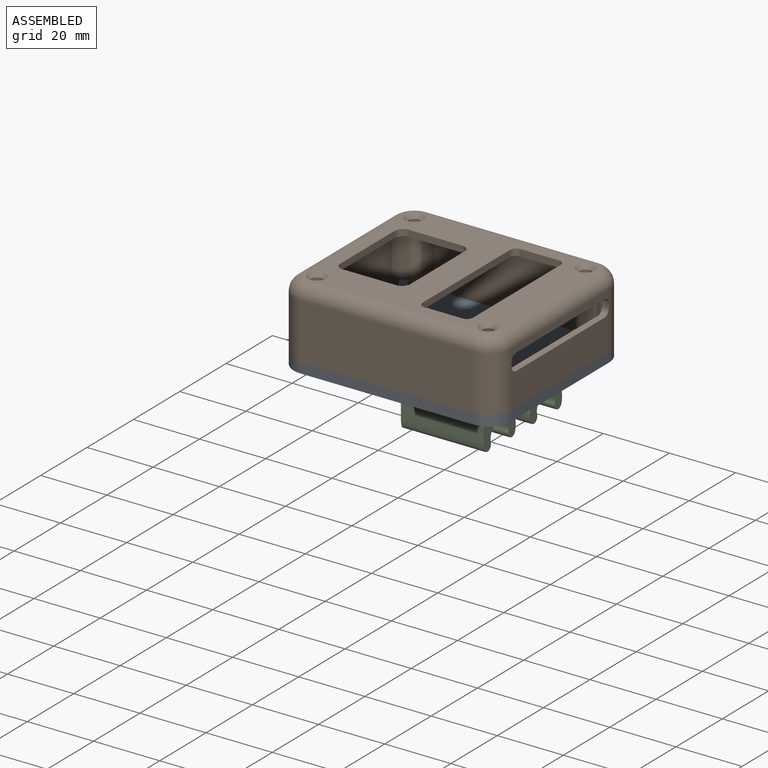
[diagram: assembled view]
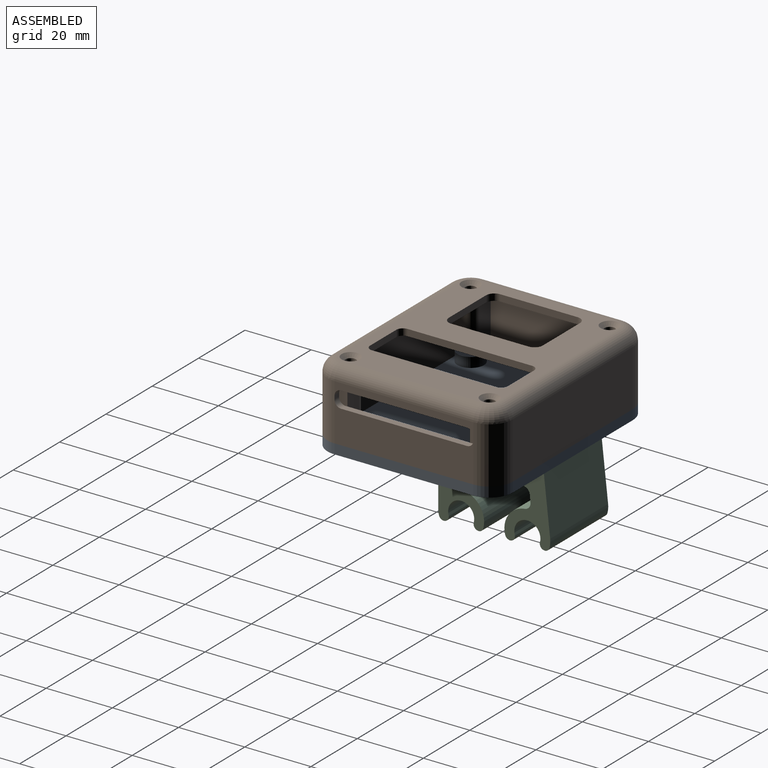
[diagram: assembled view, second angle]
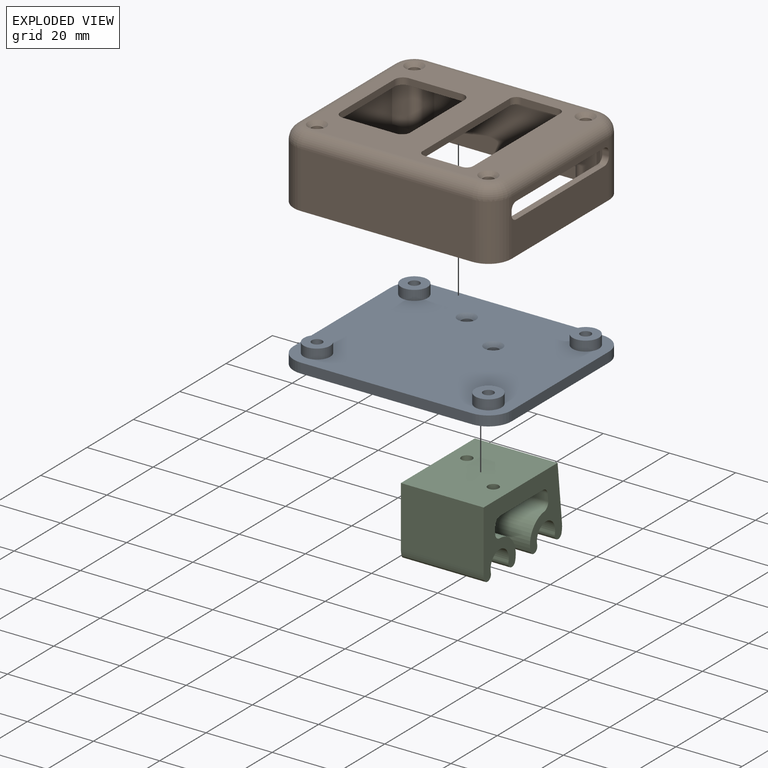
[diagram: exploded view]
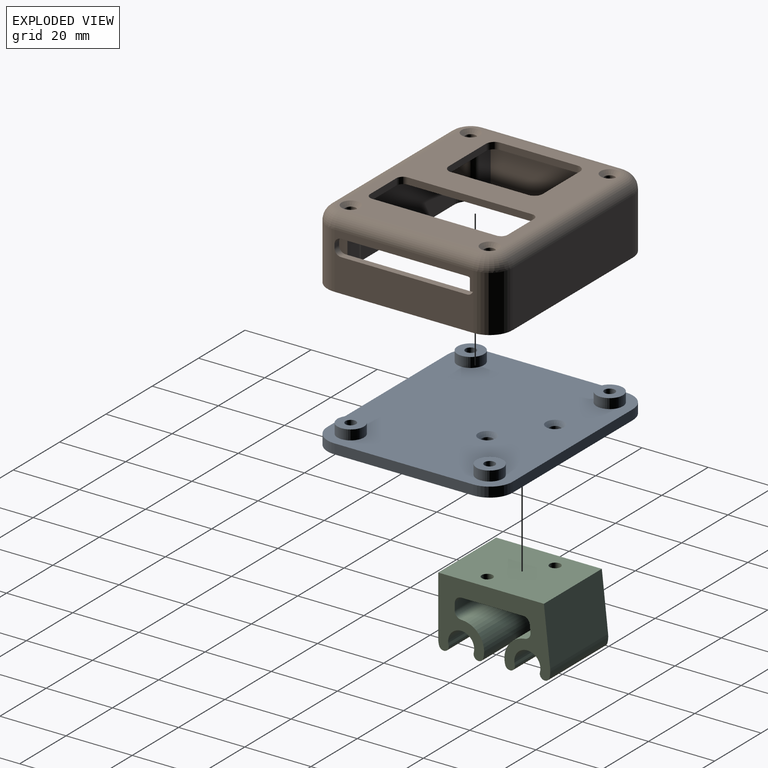
[diagram: exploded view, second angle]
ASSEMBLY  parts=3 mates=4
PART A: 54 faces, bbox 65.8x56x6 mm
  f0: plane 65.8x56mm, normal (0,0,-1), area 3518mm2, adj f1,f2,f3,f4,f5,f6,f7,f8
  f1: plane 51.8x3mm, normal (0,1,0), area 155.4mm2, adj f0,f2,f8,f9
  f2: cylinder r=7mm len=7mm, axis (0,0,1), area 33mm2, adj f0,f1,f3,f9
  f3: plane 42x3mm, normal (-1,0,0), area 126mm2, adj f0,f2,f4,f9
  f4: cylinder r=7mm len=7mm, axis (0,0,1), area 33mm2, adj f0,f3,f5,f9
  f5: plane 51.8x3mm, normal (0,-1,0), area 155.4mm2, adj f0,f4,f6,f9
  f6: cylinder r=7mm len=7mm, axis (0,0,1), area 33mm2, adj f0,f5,f7,f9
  f7: plane 42x3mm, normal (1,0,0), area 126mm2, adj f0,f6,f8,f9
  f8: cylinder r=7mm len=7mm, axis (0,0,1), area 33mm2, adj f0,f1,f7,f9
  f9: plane 65.8x56mm, normal (0,0,1), area 3394.2mm2, adj f1,f2,f3,f4,f5,f6,f7,f8
  f10: cylinder r=4mm len=8mm, axis (0,0,-1), area 75.4mm2, adj f9,f11
  f11: plane 8x8mm, normal (0,0,1), area 42.2mm2, adj f10,f46
  f12: cylinder r=4mm len=8mm, axis (0,0,-1), area 75.4mm2, adj f9,f13
  f13: plane 8x8mm, normal (0,0,1), area 42.2mm2, adj f12,f49
  f14: cylinder r=4mm len=8mm, axis (0,0,-1), area 75.4mm2, adj f9,f15
  f15: plane 8x8mm, normal (0,0,1), area 42.2mm2, adj f14,f48
  f16: cylinder r=4mm len=8mm, axis (0,0,-1), area 75.4mm2, adj f9,f17
  f17: plane 8x8mm, normal (0,0,1), area 42.2mm2, adj f16,f47
  f18: plane 3.23x3mm, normal (0,1,0), area 9.7mm2, adj f0,f19,f23,f24
  f19: plane 3x2.8mm, normal (0.87,0.5,0), area 9.7mm2, adj f0,f18,f20,f24
  f20: plane 3x2.8mm, normal (0.87,-0.5,0), area 9.7mm2, adj f0,f19,f21,f24
  f21: plane 3.23x3mm, normal (0,-1,0), area 9.7mm2, adj f0,f20,f22,f24
  f22: plane 3x2.8mm, normal (-0.87,-0.5,0), area 9.7mm2, adj f0,f21,f23,f24
  f23: plane 3x2.8mm, normal (-0.87,0.5,0), area 9.7mm2, adj f0,f18,f22,f24
  f24: plane 6.47x5.6mm, normal (0,0,-1), area 19.1mm2, adj f18,f19,f20,f21,f22,f23,f49
  f25: plane 3.23x3mm, normal (0,-1,0), area 9.7mm2, adj f0,f26,f30,f31
  f26: plane 3x2.8mm, normal (-0.87,-0.5,0), area 9.7mm2, adj f0,f25,f27,f31
  f27: plane 3x2.8mm, normal (-0.87,0.5,0), area 9.7mm2, adj f0,f26,f28,f31
  f28: plane 3.23x3mm, normal (0,1,0), area 9.7mm2, adj f0,f27,f29,f31
  f29: plane 3x2.8mm, normal (0.87,0.5,0), area 9.7mm2, adj f0,f28,f30,f31
  f30: plane 3x2.8mm, normal (0.87,-0.5,0), area 9.7mm2, adj f0,f25,f29,f31
  f31: plane 6.47x5.6mm, normal (0,0,-1), area 19.1mm2, adj f25,f26,f27,f28,f29,f30,f48
  f32: plane 3.23x3mm, normal (0,1,0), area 9.7mm2, adj f0,f33,f37,f38
  f33: plane 3x2.8mm, normal (0.87,0.5,0), area 9.7mm2, adj f0,f32,f34,f38
  f34: plane 3x2.8mm, normal (0.87,-0.5,0), area 9.7mm2, adj f0,f33,f35,f38
  f35: plane 3.23x3mm, normal (0,-1,0), area 9.7mm2, adj f0,f34,f36,f38
  f36: plane 3x2.8mm, normal (-0.87,-0.5,0), area 9.7mm2, adj f0,f35,f37,f38
  f37: plane 3x2.8mm, normal (-0.87,0.5,0), area 9.7mm2, adj f0,f32,f36,f38
  f38: plane 6.47x5.6mm, normal (0,0,-1), area 19.1mm2, adj f32,f33,f34,f35,f36,f37,f47
  f39: plane 3.23x3mm, normal (0,1,0), area 9.7mm2, adj f0,f40,f44,f45
  f40: plane 3x2.8mm, normal (0.87,0.5,0), area 9.7mm2, adj f0,f39,f41,f45
  f41: plane 3x2.8mm, normal (0.87,-0.5,0), area 9.7mm2, adj f0,f40,f42,f45
  f42: plane 3.23x3mm, normal (0,-1,0), area 9.7mm2, adj f0,f41,f43,f45
  f43: plane 3x2.8mm, normal (-0.87,-0.5,0), area 9.7mm2, adj f0,f42,f44,f45
  f44: plane 3x2.8mm, normal (-0.87,0.5,0), area 9.7mm2, adj f0,f39,f43,f45
  f45: plane 6.47x5.6mm, normal (0,0,-1), area 19.1mm2, adj f39,f40,f41,f42,f43,f44,f46
  f46: cylinder r=1.6mm len=3.2mm, axis (0,0,-1), area 30.2mm2, adj f11,f45
  f47: cylinder r=1.6mm len=3.2mm, axis (0,0,-1), area 30.2mm2, adj f17,f38
  f48: cylinder r=1.6mm len=3.2mm, axis (0,0,-1), area 30.2mm2, adj f15,f31
  f49: cylinder r=1.6mm len=3.2mm, axis (0,0,-1), area 30.2mm2, adj f13,f24
  f50: cylinder r=1.6mm len=3.2mm, axis (0,0,1), area 18.6mm2, adj f0,f51
  f51: cone r=1.6mm half-angle=45deg, axis (0,0,1), area 22.2mm2, adj f9,f50
  f52: cylinder r=1.6mm len=3.2mm, axis (0,0,1), area 18.6mm2, adj f0,f53
  f53: cone r=1.6mm half-angle=45deg, axis (0,0,1), area 22.2mm2, adj f9,f52
PART B: 83 faces, bbox 65.8x56x21 mm
  f0: plane 51.8x17mm, normal (0,-1,0), area 818.6mm2, adj f2,f4,f5,f22,f74,f77,f79,f82
  f1: plane 42x10mm, normal (-1,0,0), area 393mm2, adj f2,f7,f22,f43,f69,f73,f78,f82
  f2: cylinder r=5mm len=5mm, axis (0,0,-1), area 36.1mm2, adj f0,f1,f22,f82
  f3: plane 37x2mm, normal (-1,0,0), area 74mm2, adj f8,f42,f69,f78
  f4: cylinder r=2mm len=46.8mm, axis (-1,0,0), area 147mm2, adj f0,f12,f74,f79
  f5: cylinder r=5mm len=5mm, axis (0,0,-1), area 36.1mm2, adj f0,f6,f22,f77
  f6: plane 42x17mm, normal (1,0,0), area 652mm2, adj f5,f10,f22,f24,f66,f68,f75,f77
  f7: cylinder r=5mm len=5mm, axis (0,0,-1), area 36.1mm2, adj f1,f9,f22,f73
  f8: cylinder r=2mm len=37mm, axis (0,1,0), area 116.2mm2, adj f3,f12,f69,f78
  f9: plane 51.8x17mm, normal (0,1,0), area 818.6mm2, adj f7,f10,f22,f23,f65,f68,f70,f73
  f10: cylinder r=5mm len=5mm, axis (0,0,-1), area 36.1mm2, adj f6,f9,f22,f68
  f11: plane 42x4mm, normal (1,0,0), area 85.7mm2, adj f19,f21,f29,f42,f45,f47
  f12: plane 57.8x48mm, normal (0,0,-1), area 1431.8mm2, adj f4,f8,f23,f24,f33,f34,f35,f36
  f13: plane 57.8x48mm, normal (0,0,1), area 1444.7mm2, adj f25,f26,f27,f28,f29,f30,f31,f32
  f14: plane 51.8x17mm, normal (0,1,0), area 880.6mm2, adj f15,f21,f22,f32
  f15: cylinder r=7mm len=17mm, axis (0,0,-1), area 186.9mm2, adj f14,f16,f22,f30
  f16: plane 42x17mm, normal (-1,0,0), area 714mm2, adj f15,f17,f22,f28
  f17: cylinder r=7mm len=17mm, axis (0,0,-1), area 186.9mm2, adj f16,f18,f22,f26
  f18: plane 51.8x17mm, normal (0,-1,0), area 880.6mm2, adj f17,f19,f22,f25
  f19: cylinder r=7mm len=17mm, axis (0,0,-1), area 186.9mm2, adj f11,f18,f20,f22,f27,f41
  f20: plane 42x12mm, normal (1,0,0), area 421.7mm2, adj f19,f21,f22,f43,f46,f48
  f21: cylinder r=7mm len=17mm, axis (0,0,-1), area 186.9mm2, adj f11,f14,f20,f22,f31,f44
  f22: plane 65.8x56mm, normal (0,0,-1), area 450.6mm2, adj f0,f1,f2,f5,f6,f7,f9,f10
  f23: cylinder r=2mm len=46.8mm, axis (1,0,0), area 147mm2, adj f9,f12,f65,f70
  f24: cylinder r=2mm len=37mm, axis (0,-1,0), area 116.2mm2, adj f6,f12,f66,f75
  f25: cylinder r=4mm len=51.8mm, axis (-1,0,0), area 325.5mm2, adj f13,f18,f26,f27
  f26: torus R=3mm, axis (0,0,1), area 54.7mm2, adj f13,f17,f25,f28
  f27: torus R=3mm, axis (0,0,1), area 54.7mm2, adj f13,f19,f25,f29
  f28: cylinder r=4mm len=42mm, axis (0,1,0), area 263.9mm2, adj f13,f16,f26,f30
  f29: cylinder r=4mm len=42mm, axis (0,-1,0), area 263.9mm2, adj f11,f13,f27,f31
  f30: torus R=3mm, axis (0,0,1), area 54.7mm2, adj f13,f15,f28,f32
  f31: torus R=3mm, axis (0,0,1), area 54.7mm2, adj f13,f21,f29,f32
  f32: cylinder r=4mm len=51.8mm, axis (1,0,0), area 325.5mm2, adj f13,f14,f30,f31
  f33: plane 23.4x2mm, normal (-1,0,0), area 46.8mm2, adj f12,f13,f34,f40
  f34: cylinder r=2.5mm len=2.5mm, axis (0,0,1), area 7.9mm2, adj f12,f13,f33,f35
  f35: plane 16.1x2mm, normal (0,-1,0), area 32.2mm2, adj f12,f13,f34,f36
  f36: cylinder r=2.5mm len=2.5mm, axis (0,0,1), area 7.9mm2, adj f12,f13,f35,f37
  f37: plane 23.4x2mm, normal (1,0,0), area 46.8mm2, adj f12,f13,f36,f38
  f38: cylinder r=2.5mm len=2.5mm, axis (0,0,1), area 7.9mm2, adj f12,f13,f37,f39
  f39: plane 16.1x2mm, normal (0,1,0), area 32.2mm2, adj f12,f13,f38,f40
  f40: cylinder r=2.5mm len=2.5mm, axis (0,0,1), area 7.9mm2, adj f12,f13,f33,f39
  f41: plane 2x1mm, normal (0,1,0), area 2mm2, adj f19,f45,f46,f71
  f42: plane 38x2mm, normal (0,0,-1), area 76mm2, adj f3,f11,f45,f47,f71,f80
  f43: plane 38x2mm, normal (0,0,1), area 76mm2, adj f1,f20,f46,f48,f71,f80
  f44: plane 2x1mm, normal (0,-1,0), area 2mm2, adj f21,f47,f48,f80
  f45: cylinder r=2mm len=2mm, axis (1,0,0), area 6.3mm2, adj f11,f41,f42,f71
  f46: cylinder r=2mm len=2mm, axis (-1,0,0), area 6.3mm2, adj f20,f41,f43,f71
  f47: cylinder r=2mm len=2mm, axis (-1,0,0), area 6.3mm2, adj f11,f42,f44,f80
  f48: cylinder r=2mm len=2mm, axis (1,0,0), area 6.3mm2, adj f20,f43,f44,f80
  f49: plane 37.6x2mm, normal (1,0,0), area 75.2mm2, adj f12,f13,f53,f54
  f50: plane 11.3x2mm, normal (0,-1,0), area 22.6mm2, adj f12,f13,f53,f55
  f51: plane 11.3x2mm, normal (0,1,0), area 22.6mm2, adj f12,f13,f54,f56
  f52: plane 37.6x2mm, normal (-1,0,0), area 75.2mm2, adj f12,f13,f55,f56
  f53: cylinder r=2mm len=2mm, axis (0,0,-1), area 6.3mm2, adj f12,f13,f49,f50
  f54: cylinder r=2mm len=2mm, axis (0,0,1), area 6.3mm2, adj f12,f13,f49,f51
  f55: cylinder r=2mm len=2mm, axis (0,0,1), area 6.3mm2, adj f12,f13,f50,f52
  f56: cylinder r=2mm len=2mm, axis (0,0,-1), area 6.3mm2, adj f12,f13,f51,f52
  f57: cylinder r=1.6mm len=15.25mm, axis (0,0,1), area 153.3mm2, adj f58,f77
  f58: cone r=1.6mm half-angle=45deg, axis (0,0,1), area 22.2mm2, adj f13,f57
  f59: cylinder r=1.6mm len=15.25mm, axis (0,0,1), area 153.3mm2, adj f60,f82
  f60: cone r=1.6mm half-angle=45deg, axis (0,0,1), area 22.2mm2, adj f13,f59
  f61: cylinder r=1.6mm len=15.25mm, axis (0,0,1), area 153.3mm2, adj f62,f73
  f62: cone r=1.6mm half-angle=45deg, axis (0,0,1), area 22.2mm2, adj f13,f61
  f63: cylinder r=1.6mm len=15.25mm, axis (0,0,1), area 153.3mm2, adj f64,f68
  f64: cone r=1.6mm half-angle=45deg, axis (0,0,1), area 22.2mm2, adj f13,f63
  f65: plane 14.4x5mm, normal (1,0,0), area 71.1mm2, adj f9,f12,f23,f67,f68
  f66: plane 14.4x5mm, normal (0,1,0), area 71.1mm2, adj f6,f12,f24,f67,f68
  f67: cylinder r=2.5mm len=14.4mm, axis (0,0,1), area 56.5mm2, adj f12,f65,f66,f68
  f68: plane 7.5x7.5mm, normal (0,0,-1), area 41.5mm2, adj f6,f9,f10,f63,f65,f66,f67
  f69: plane 14.4x5mm, normal (0,1,0), area 71.1mm2, adj f1,f3,f8,f12,f71,f72,f73
  f70: plane 14.4x5mm, normal (-1,0,0), area 71.1mm2, adj f9,f12,f23,f72,f73
  f71: plane 5x2.5mm, normal (1,0,0), area 10.8mm2, adj f41,f42,f43,f45,f46,f69
  f72: cylinder r=2.5mm len=14.4mm, axis (0,0,1), area 56.5mm2, adj f12,f69,f70,f73
  f73: plane 7.5x7.5mm, normal (0,0,-1), area 41.5mm2, adj f1,f7,f9,f61,f69,f70,f72
  f74: plane 14.4x5mm, normal (1,0,0), area 71.1mm2, adj f0,f4,f12,f76,f77
  f75: plane 14.4x5mm, normal (0,-1,0), area 71.1mm2, adj f6,f12,f24,f76,f77
  f76: cylinder r=2.5mm len=14.4mm, axis (0,0,1), area 56.5mm2, adj f12,f74,f75,f77
  f77: plane 7.5x7.5mm, normal (0,0,-1), area 41.5mm2, adj f0,f5,f6,f57,f74,f75,f76
  f78: plane 14.4x5mm, normal (0,-1,0), area 71.1mm2, adj f1,f3,f8,f12,f80,f81,f82
  f79: plane 14.4x5mm, normal (-1,0,0), area 71.1mm2, adj f0,f4,f12,f81,f82
  f80: plane 5x2.5mm, normal (1,0,0), area 10.8mm2, adj f42,f43,f44,f47,f48,f78
  f81: cylinder r=2.5mm len=14.4mm, axis (0,0,1), area 56.5mm2, adj f12,f78,f79,f82
  f82: plane 7.5x7.5mm, normal (0,0,-1), area 41.5mm2, adj f0,f1,f2,f59,f78,f79,f81
PART C: 38 faces, bbox 25x33.9x20.9 mm
  f0: cylinder r=1.65mm len=3.3mm, axis (0,0,1), area 20.7mm2, adj f16,f37
  f1: cylinder r=1.65mm len=3.3mm, axis (0,0,1), area 20.7mm2, adj f16,f30
  f2: cylinder r=6.94mm len=25mm, axis (-1,0,0), area 45.4mm2, adj f3,f17,f18,f19
  f3: cylinder r=1.5mm len=25mm, axis (-1,0,0), area 117.8mm2, adj f2,f4,f18,f19
  f4: cylinder r=3.94mm len=25mm, axis (-1,0,0), area 361mm2, adj f3,f5,f18,f19
  f5: cylinder r=1.5mm len=25mm, axis (-1,0,0), area 117.8mm2, adj f4,f6,f18,f19
  f6: cylinder r=6.94mm len=25mm, axis (-1,0,0), area 316.8mm2, adj f5,f18,f19,f20
  f7: plane 25x2.06mm, normal (0,1,0), area 51.5mm2, adj f18,f19,f20,f21
  f8: plane 25x18.67mm, normal (0,0,-1), area 412.4mm2, adj f18,f19,f21,f22,f24,f25,f26,f27
  f9: plane 25x2.12mm, normal (0,-0.99,-0.11), area 53.3mm2, adj f18,f19,f22,f23
  f10: cylinder r=6.94mm len=25mm, axis (-1,0,0), area 297.8mm2, adj f11,f18,f19,f23
  f11: cylinder r=1.5mm len=25mm, axis (-1,0,0), area 117.8mm2, adj f10,f12,f18,f19
  f12: cylinder r=3.94mm len=25mm, axis (-1,0,0), area 361mm2, adj f11,f13,f18,f19
  f13: cylinder r=1.5mm len=25mm, axis (-1,0,0), area 117.8mm2, adj f12,f14,f18,f19
  f14: cylinder r=6.94mm len=25mm, axis (-1,0,0), area 64.4mm2, adj f13,f15,f18,f19
  f15: plane 25x17.24mm, normal (0,0.99,0.11), area 433.6mm2, adj f14,f16,f18,f19
  f16: plane 31.94x25mm, normal (0,0,1), area 781.4mm2, adj f0,f1,f15,f17,f18,f19
  f17: plane 25x18mm, normal (0,-1,0), area 450mm2, adj f2,f16,f18,f19
  f18: plane 33.88x20.91mm, normal (1,0,0), area 377.3mm2, adj f2,f3,f4,f5,f6,f7,f8,f9
  f19: plane 33.88x20.91mm, normal (-1,0,0), area 377.3mm2, adj f2,f3,f4,f5,f6,f7,f8,f9
  f20: cylinder r=2mm len=25mm, axis (-1,0,0), area 78.2mm2, adj f6,f7,f18,f19
  f21: cylinder r=2mm len=25mm, axis (-1,0,0), area 78.5mm2, adj f7,f8,f18,f19
  f22: cylinder r=2mm len=25mm, axis (1,0,0), area 73.1mm2, adj f8,f9,f18,f19
  f23: cylinder r=2mm len=25mm, axis (-1,0,0), area 78.2mm2, adj f9,f10,f18,f19
  f24: plane 3x2.8mm, normal (0.87,-0.5,0), area 9.7mm2, adj f8,f25,f29,f30
  f25: plane 3.23x3mm, normal (0,-1,0), area 9.7mm2, adj f8,f24,f26,f30
  f26: plane 3x2.8mm, normal (-0.87,-0.5,0), area 9.7mm2, adj f8,f25,f27,f30
  f27: plane 3x2.8mm, normal (-0.87,0.5,0), area 9.7mm2, adj f8,f26,f28,f30
  f28: plane 3.23x3mm, normal (0,1,0), area 9.7mm2, adj f8,f27,f29,f30
  f29: plane 3x2.8mm, normal (0.87,0.5,0), area 9.7mm2, adj f8,f24,f28,f30
  f30: plane 6.47x5.6mm, normal (0,0,-1), area 18.6mm2, adj f1,f24,f25,f26,f27,f28,f29
  f31: plane 3x2.8mm, normal (0.87,-0.5,0), area 9.7mm2, adj f8,f32,f36,f37
  f32: plane 3.23x3mm, normal (0,-1,0), area 9.7mm2, adj f8,f31,f33,f37
  f33: plane 3x2.8mm, normal (-0.87,-0.5,0), area 9.7mm2, adj f8,f32,f34,f37
  f34: plane 3x2.8mm, normal (-0.87,0.5,0), area 9.7mm2, adj f8,f33,f35,f37
  f35: plane 3.23x3mm, normal (0,1,0), area 9.7mm2, adj f8,f34,f36,f37
  f36: plane 3x2.8mm, normal (0.87,0.5,0), area 9.7mm2, adj f8,f31,f35,f37
  f37: plane 6.47x5.6mm, normal (0,0,-1), area 18.6mm2, adj f0,f31,f32,f33,f34,f35,f36
PLACE A t=(-4.35,12.11,0)mm
PLACE B t=(-4.35,12.11,0)mm
PLACE C t=(-4.35,12.11,0)mm
MATE fastened C.f0 <-> A.f50  axis (0,0,1) through (3.15,19.5,-3)mm
MATE planar B.f18 <-> A.f5  axis (0,-1,0) through (-4.35,-15.89,8.5)mm
MATE planar B.f22 <-> A.f9  axis (0,0,-1) through (-4.35,12.11,0)mm
MATE planar B.f20 <-> A.f7  axis (1,0,0) through (28.55,12.11,0)mm
